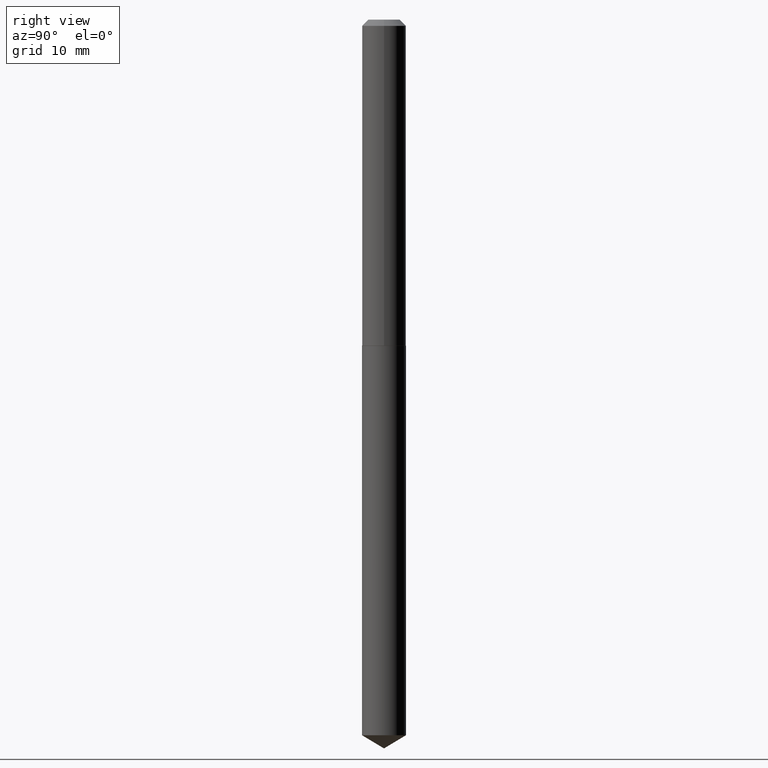
[diagram: clean part render]
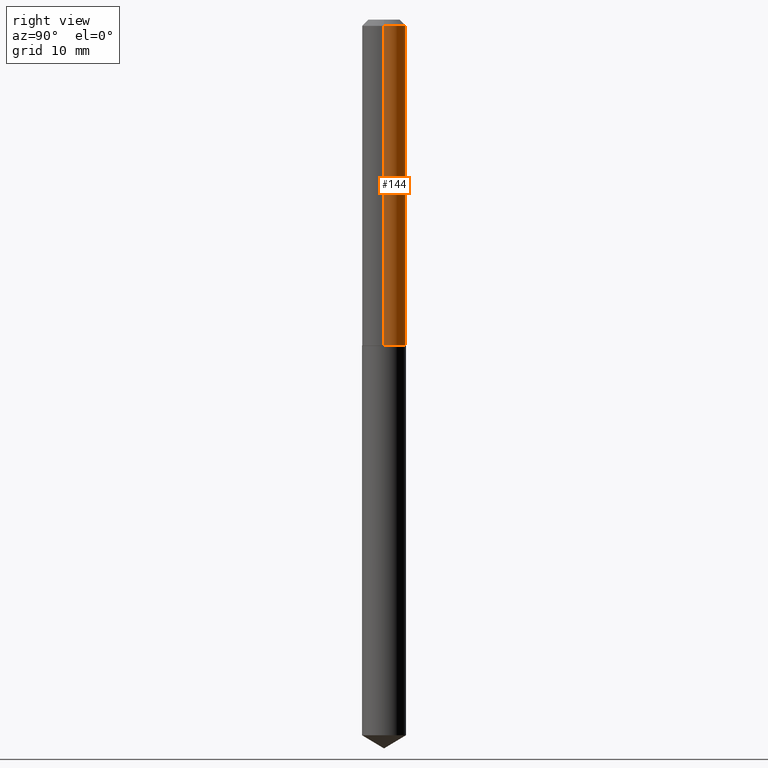
[diagram: same view with one face highlighted and labeled with its STEP entity id]
A machine part, right view. The second image highlights one B-rep face of the part: STEP entity #144.
In plain terms, the highlighted cylindrical surface (edge-blend (fillet) strip) has radius 2.8004 mm, axis along (-0, 0, 1).
Its self-contained STEP definition (entity closure, byte-faithful):
#4 = CARTESIAN_POINT ( 'NONE',  ( -0.1102500000000000008, -2.129482227787853014E-15, -0.03125000000000021511 ) ) ;
#19 = EDGE_CURVE ( 'NONE', #69, #278, #375, .T. ) ;
#27 = DIRECTION ( 'NONE',  ( -2.445468806185136597E-29, 3.491481338843145583E-15, 1.000000000000000000 ) ) ;
#37 = EDGE_LOOP ( 'NONE', ( #266, #226, #320, #390 ) ) ;
#39 = EDGE_CURVE ( 'NONE', #278, #58, #106, .T. ) ;
#43 = DIRECTION ( 'NONE',  ( 1.000000000000000000, -6.982962677686265133E-15, 0.000000000000000000 ) ) ;
#54 = FACE_OUTER_BOUND ( 'NONE', #37, .T. ) ;
#58 = VERTEX_POINT ( 'NONE', #4 ) ;
#60 = CYLINDRICAL_SURFACE ( 'NONE', #195, 0.1102500000000001118 ) ;
#69 = VERTEX_POINT ( 'NONE', #371 ) ;
#85 = CARTESIAN_POINT ( 'NONE',  ( 0.000000000000000000, 0.000000000000000000, 0.000000000000000000 ) ) ;
#106 = CIRCLE ( 'NONE', #299, 0.1102500000000000008 ) ;
#108 = VECTOR ( 'NONE', #361, 39.37007874015748143 ) ;
#144 = ADVANCED_FACE ( 'NONE', ( #54 ), #60, .T. ) ;
#149 = DIRECTION ( 'NONE',  ( 1.000000000000000000, -6.982962677686266711E-15, 0.000000000000000000 ) ) ;
#160 = DIRECTION ( 'NONE',  ( -2.445468806185136597E-29, 3.491481338843145583E-15, 1.000000000000000000 ) ) ;
#178 = CARTESIAN_POINT ( 'NONE',  ( -0.1102500000000002089, -4.933229029912370247E-15, -1.637299999999999978 ) ) ;
#179 = DIRECTION ( 'NONE',  ( -2.445468806185136877E-29, 3.491481338843145188E-15, 1.000000000000000000 ) ) ;
#188 = DIRECTION ( 'NONE',  ( -2.445468806185136597E-29, 3.491481338843145583E-15, 1.000000000000000000 ) ) ;
#195 = AXIS2_PLACEMENT_3D ( 'NONE', #85, #188, #310 ) ;
#209 = CARTESIAN_POINT ( 'NONE',  ( 0.1102500000000000008, -8.789804270537599818E-16, -0.03125000000000021511 ) ) ;
#226 = ORIENTED_EDGE ( 'NONE', *, *, #315, .T. ) ;
#232 = CARTESIAN_POINT ( 'NONE',  ( 0.1102500000000001118, -7.698716352149116700E-16, 5.375984895315024509E-30 ) ) ;
#262 = CARTESIAN_POINT ( 'NONE',  ( 4.003966076366924393E-29, -5.716602396087881989E-15, -1.637299999999999978 ) ) ;
#266 = ORIENTED_EDGE ( 'NONE', *, *, #290, .T. ) ;
#277 = CARTESIAN_POINT ( 'NONE',  ( 7.642090019328604414E-31, -1.091087918388490513E-16, -0.03125000000000021511 ) ) ;
#278 = VERTEX_POINT ( 'NONE', #209 ) ;
#290 = EDGE_CURVE ( 'NONE', #69, #331, #329, .T. ) ;
#299 = AXIS2_PLACEMENT_3D ( 'NONE', #277, #160, #149 ) ;
#305 = VECTOR ( 'NONE', #179, 39.37007874015748143 ) ;
#306 = AXIS2_PLACEMENT_3D ( 'NONE', #262, #27, #43 ) ;
#310 = DIRECTION ( 'NONE',  ( 1.000000000000000000, -6.982962677686266711E-15, 4.876176775795935793E-29 ) ) ;
#315 = EDGE_CURVE ( 'NONE', #331, #58, #346, .T. ) ;
#320 = ORIENTED_EDGE ( 'NONE', *, *, #39, .F. ) ;
#329 = CIRCLE ( 'NONE', #306, 0.1102500000000002089 ) ;
#331 = VERTEX_POINT ( 'NONE', #178 ) ;
#346 = LINE ( 'NONE', #356, #108 ) ;
#356 = CARTESIAN_POINT ( 'NONE',  ( -0.1102500000000001118, 7.833733661755112493E-16, -5.423125937006039074E-30 ) ) ;
#361 = DIRECTION ( 'NONE',  ( -2.445468806185136877E-29, 3.491481338843145188E-15, 1.000000000000000000 ) ) ;
#371 = CARTESIAN_POINT ( 'NONE',  ( 0.1102500000000002089, -6.486474031302794251E-15, -1.637299999999999978 ) ) ;
#375 = LINE ( 'NONE', #232, #305 ) ;
#390 = ORIENTED_EDGE ( 'NONE', *, *, #19, .F. ) ;